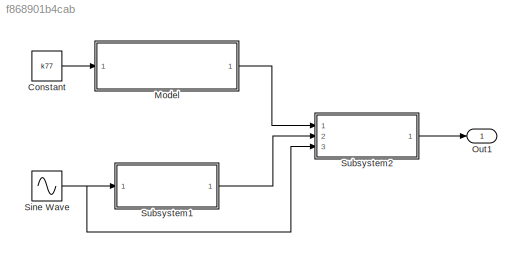
MODEL slx_f868901b4cab
KIND model
BLOCK [Constant] Constant
  Value = k77
BLOCK [ModelReference] Model
  CopyOfModelName = model3.slx
  DefaultDataLogging = on
  ModelNameDialog = model3.slx
  ModelReferenceVersion = 1.4
  Ports = [1, 1]
BLOCK [Outport] Out1
  IconDisplay = Port number
BLOCK [Sin] Sine Wave
  Ports = [0, 1]
  SampleTime = 0
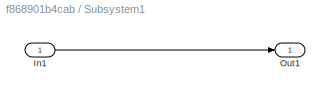
BLOCK [SubSystem] Subsystem1
  FunctionWithSeparateData = off
  MaskHideContents = off
  MinAlgLoopOccurrences = off
  Opaque = off
  Ports = [1, 1]
  PropExecContextOutsideSubsystem = off
  RTWSystemCode = Auto
  RequestExecContextInheritance = off
BLOCK [Inport] Subsystem1/In1
  IconDisplay = Port number
BLOCK [Outport] Subsystem1/Out1
  IconDisplay = Port number
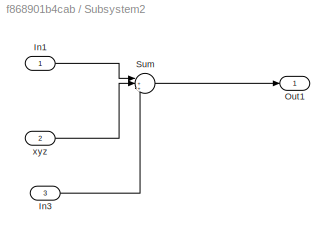
BLOCK [SubSystem] Subsystem2
  FunctionWithSeparateData = off
  MaskHideContents = off
  MinAlgLoopOccurrences = off
  Opaque = off
  Ports = [3, 1]
  PropExecContextOutsideSubsystem = off
  RTWSystemCode = Auto
  RequestExecContextInheritance = off
BLOCK [Inport] Subsystem2/In1
  IconDisplay = Port number
BLOCK [Inport] Subsystem2/In3
  IconDisplay = Port number
  Port = 3
BLOCK [Outport] Subsystem2/Out1
  IconDisplay = Port number
BLOCK [Sum] Subsystem2/Sum
  IconShape = round
  InputSameDT = off
  Inputs = |+++
  OutDataTypeStr = Inherit: Inherit via internal rule
  Ports = [3, 1]
  SaturateOnIntegerOverflow = off
BLOCK [Inport] Subsystem2/xyz
  IconDisplay = Port number
  Port = 2
LINE Constant:1 -> Model:1
LINE Model:1 -> Subsystem2:1
NET Sine Wave:1 -> Subsystem1:1, Subsystem2:3
LINE Subsystem1/In1:1 -> Subsystem1/Out1:1
LINE Subsystem1:1 -> Subsystem2:2
LINE Subsystem2/In1:1 -> Subsystem2/Sum:1
LINE Subsystem2/In3:1 -> Subsystem2/Sum:3
LINE Subsystem2/Sum:1 -> Subsystem2/Out1:1
LINE Subsystem2/xyz:1 -> Subsystem2/Sum:2
LINE Subsystem2:1 -> Out1:1
note: NET lines group one-source signal fan-out (src -> all destinations, sorted); 1:1 wires keep LINE
